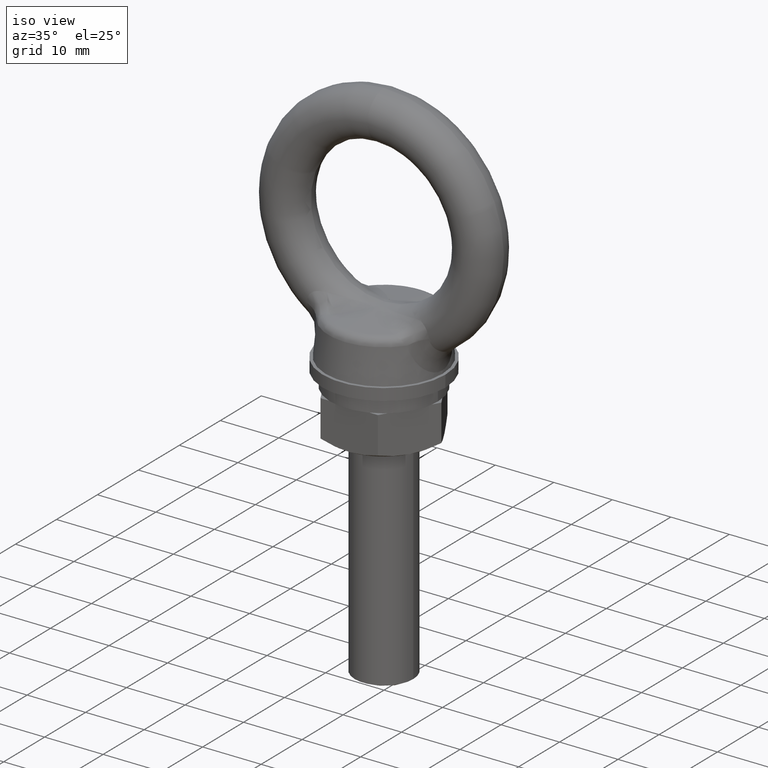
[diagram: clean part render]
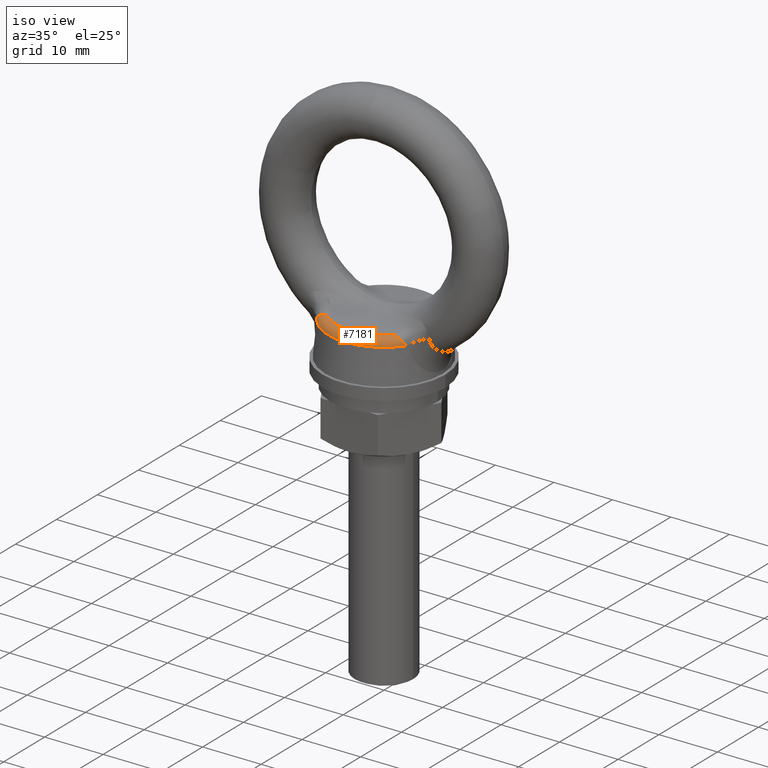
[diagram: same view with one face highlighted and labeled with its STEP entity id]
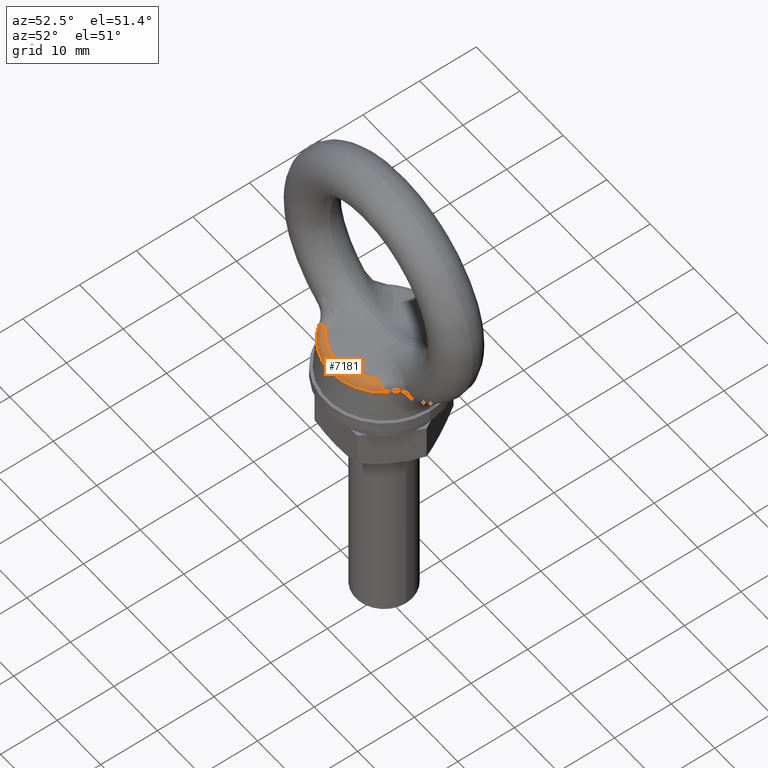
[diagram: same view with one face highlighted and labeled with its STEP entity id]
A machine part, iso view. The second image highlights one B-rep face of the part: STEP entity #7181.
A second angle (auxiliary view) of the same face is appended — the face is thin or edge-on in the first view.
In plain terms, the highlighted toroidal blend (fillet) surface has major radius 7.9953 mm and minor (blend) radius 1.5 mm.
Its self-contained STEP definition (entity closure, byte-faithful):
#1440 = CARTESIAN_POINT ( 'NONE',  ( -7.760410120876260400, -5.461485613272089700, -15.16582361561554900 ) ) ;
#1441 = CARTESIAN_POINT ( 'NONE',  ( -7.663399209687748100, -5.575138505293577600, -15.00667800274997000 ) ) ;
#1442 = CARTESIAN_POINT ( 'NONE',  ( -7.545127001883411600, -5.670713862927121900, -14.85302455702406400 ) ) ;
#1443 = CARTESIAN_POINT ( 'NONE',  ( -7.265782746112708200, -5.820619814645433500, -14.55381830161587000 ) ) ;
#1444 = CARTESIAN_POINT ( 'NONE',  ( -7.108959587712585700, -5.872051642121530100, -14.41306535481343700 ) ) ;
#1445 = CARTESIAN_POINT ( 'NONE',  ( -6.758989168251386700, -5.926642523728499000, -14.15938085509210100 ) ) ;
#1446 = CARTESIAN_POINT ( 'NONE',  ( -6.570643268779092800, -5.927421675435817300, -14.05035679601300600 ) ) ;
#1447 = CARTESIAN_POINT ( 'NONE',  ( -6.166429667270519700, -5.908207382932203300, -13.88771093265419400 ) ) ;
#1500 = B_SPLINE_CURVE_WITH_KNOTS ( 'NONE', 3,
 ( #1503, #1502, #1447, #1446, #1445, #1444, #1443, #1442, #1441, #1440 ),
 .UNSPECIFIED., .F., .F.,
 ( 4, 2, 2, 2, 4 ),
 ( 0.0000000000000000000, 0.0006489457255814089200, 0.001297891451162817800, 0.001946837176744226800, 0.002595782902325635700 ),
 .UNSPECIFIED. ) ;
#1502 = CARTESIAN_POINT ( 'NONE',  ( -5.955478270992723600, -5.891241625290826200, -13.83827599578849300 ) ) ;
#1503 = CARTESIAN_POINT ( 'NONE',  ( -5.738277239094090400, -5.902298598163569400, -13.81535031278956000 ) ) ;
#3484 = CARTESIAN_POINT ( 'NONE',  ( -7.760410120876260400, -5.461485613272089700, -15.16582361561554900 ) ) ;
#3622 = DIRECTION ( 'NONE',  ( 0.0000000000000000000, 0.0000000000000000000, 1.000000000000000000 ) ) ;
#3623 = CARTESIAN_POINT ( 'NONE',  ( 0.0000000000000000000, 0.0000000000000000000, -15.29656066790139900 ) ) ;
#3624 = AXIS2_PLACEMENT_3D ( 'NONE', #3623, #3622, #3715 ) ;
#3691 = TOROIDAL_SURFACE ( 'NONE', #3624, 7.995270432617738600, 1.500000000000000000 ) ;
#3692 = FACE_OUTER_BOUND ( 'NONE', #7182, .T. ) ;
#3708 = CARTESIAN_POINT ( 'NONE',  ( 7.543092489526348000, -5.672044638866863900, -14.85063994365649300 ) ) ;
#3709 = CARTESIAN_POINT ( 'NONE',  ( 7.663354475831887700, -5.575190913131304900, -15.00660461722228500 ) ) ;
#3710 = CARTESIAN_POINT ( 'NONE',  ( 7.760410120876260400, -5.461485613272089700, -15.16582361561554900 ) ) ;
#3713 = B_SPLINE_CURVE_WITH_KNOTS ( 'NONE', 3,
 ( #3710, #3709, #3708, #3878, #3877, #3876, #3875, #3874, #3873, #3872, #3871, #3870 ),
 .UNSPECIFIED., .F., .F.,
 ( 4, 2, 2, 2, 2, 4 ),
 ( 4.670885906470169200E-018, 0.0006516634225218154100, 0.001303326845043626300, 0.001629158556304530800, 0.001954990267565434900, 0.002606653690087241300 ),
 .UNSPECIFIED. ) ;
#3715 = DIRECTION ( 'NONE',  ( 1.000000000000000000, 0.0000000000000000000, 0.0000000000000000000 ) ) ;
#3870 = CARTESIAN_POINT ( 'NONE',  ( 5.738277239094090400, -5.902298598163569400, -13.81535031278956000 ) ) ;
#3871 = CARTESIAN_POINT ( 'NONE',  ( 5.955701795732194300, -5.891230246399215900, -13.83829958894209400 ) ) ;
#3872 = CARTESIAN_POINT ( 'NONE',  ( 6.165120129816215500, -5.908085395352477700, -13.88745976686825400 ) ) ;
#3873 = CARTESIAN_POINT ( 'NONE',  ( 6.466491116976688300, -5.922500116127396000, -14.00831314671328100 ) ) ;
#3874 = CARTESIAN_POINT ( 'NONE',  ( 6.565290063302951400, -5.925234134275467700, -14.05635781975000700 ) ) ;
#3875 = CARTESIAN_POINT ( 'NONE',  ( 6.753845663793439900, -5.920515924516539700, -14.16279372250662000 ) ) ;
#3876 = CARTESIAN_POINT ( 'NONE',  ( 6.844339240862091800, -5.913202836315317500, -14.22138131700170400 ) ) ;
#3877 = CARTESIAN_POINT ( 'NONE',  ( 7.105868058312067200, -5.872780963033085800, -14.41056510365524600 ) ) ;
#3878 = CARTESIAN_POINT ( 'NONE',  ( 7.264731714705562600, -5.820942184945743700, -14.55290027317475700 ) ) ;
#4707 = DIRECTION ( 'NONE',  ( 1.000000000000000000, 0.0000000000000000000, 0.0000000000000000000 ) ) ;
#4708 = DIRECTION ( 'NONE',  ( 0.0000000000000000000, 0.0000000000000000000, -1.000000000000000000 ) ) ;
#4709 = CARTESIAN_POINT ( 'NONE',  ( 0.0000000000000000000, 0.0000000000000000000, -15.16582361561554900 ) ) ;
#4710 = AXIS2_PLACEMENT_3D ( 'NONE', #4709, #4708, #4707 ) ;
#4711 = CIRCLE ( 'NONE', #4710, 9.489562178950970800 ) ;
#6109 = CARTESIAN_POINT ( 'NONE',  ( 5.738277239094090400, -5.902298598163569400, -13.81535031278956000 ) ) ;
#6110 = CARTESIAN_POINT ( 'NONE',  ( -5.738277239094090400, -5.902298598163569400, -13.81535031278956000 ) ) ;
#6111 = DIRECTION ( 'NONE',  ( 1.000000000000000000, 0.0000000000000000000, 0.0000000000000000000 ) ) ;
#6112 = DIRECTION ( 'NONE',  ( 0.0000000000000000000, 0.0000000000000000000, 1.000000000000000000 ) ) ;
#6113 = CARTESIAN_POINT ( 'NONE',  ( 0.0000000000000000000, 0.0000000000000000000, -13.81535031278956000 ) ) ;
#6114 = AXIS2_PLACEMENT_3D ( 'NONE', #6113, #6112, #6111 ) ;
#6119 = CIRCLE ( 'NONE', #6114, 8.231947182446498700 ) ;
#6411 = CARTESIAN_POINT ( 'NONE',  ( 7.760410120876260400, -5.461485613272089700, -15.16582361561554900 ) ) ;
#7121 = EDGE_CURVE ( 'NONE', #7239, #7164, #1500, .T. ) ;
#7154 = ORIENTED_EDGE ( 'NONE', *, *, #7238, .F. ) ;
#7155 = ORIENTED_EDGE ( 'NONE', *, *, #7121, .T. ) ;
#7164 = VERTEX_POINT ( 'NONE', #3484 ) ;
#7181 = ADVANCED_FACE ( 'NONE', ( #3692 ), #3691, .T. ) ;
#7182 = EDGE_LOOP ( 'NONE', ( #7183, #7184, #7154, #7155 ) ) ;
#7183 = ORIENTED_EDGE ( 'NONE', *, *, #7200, .F. ) ;
#7184 = ORIENTED_EDGE ( 'NONE', *, *, #7185, .T. ) ;
#7185 = EDGE_CURVE ( 'NONE', #7264, #7240, #3713, .T. ) ;
#7200 = EDGE_CURVE ( 'NONE', #7264, #7164, #4711, .T. ) ;
#7238 = EDGE_CURVE ( 'NONE', #7239, #7240, #6119, .T. ) ;
#7239 = VERTEX_POINT ( 'NONE', #6110 ) ;
#7240 = VERTEX_POINT ( 'NONE', #6109 ) ;
#7264 = VERTEX_POINT ( 'NONE', #6411 ) ;